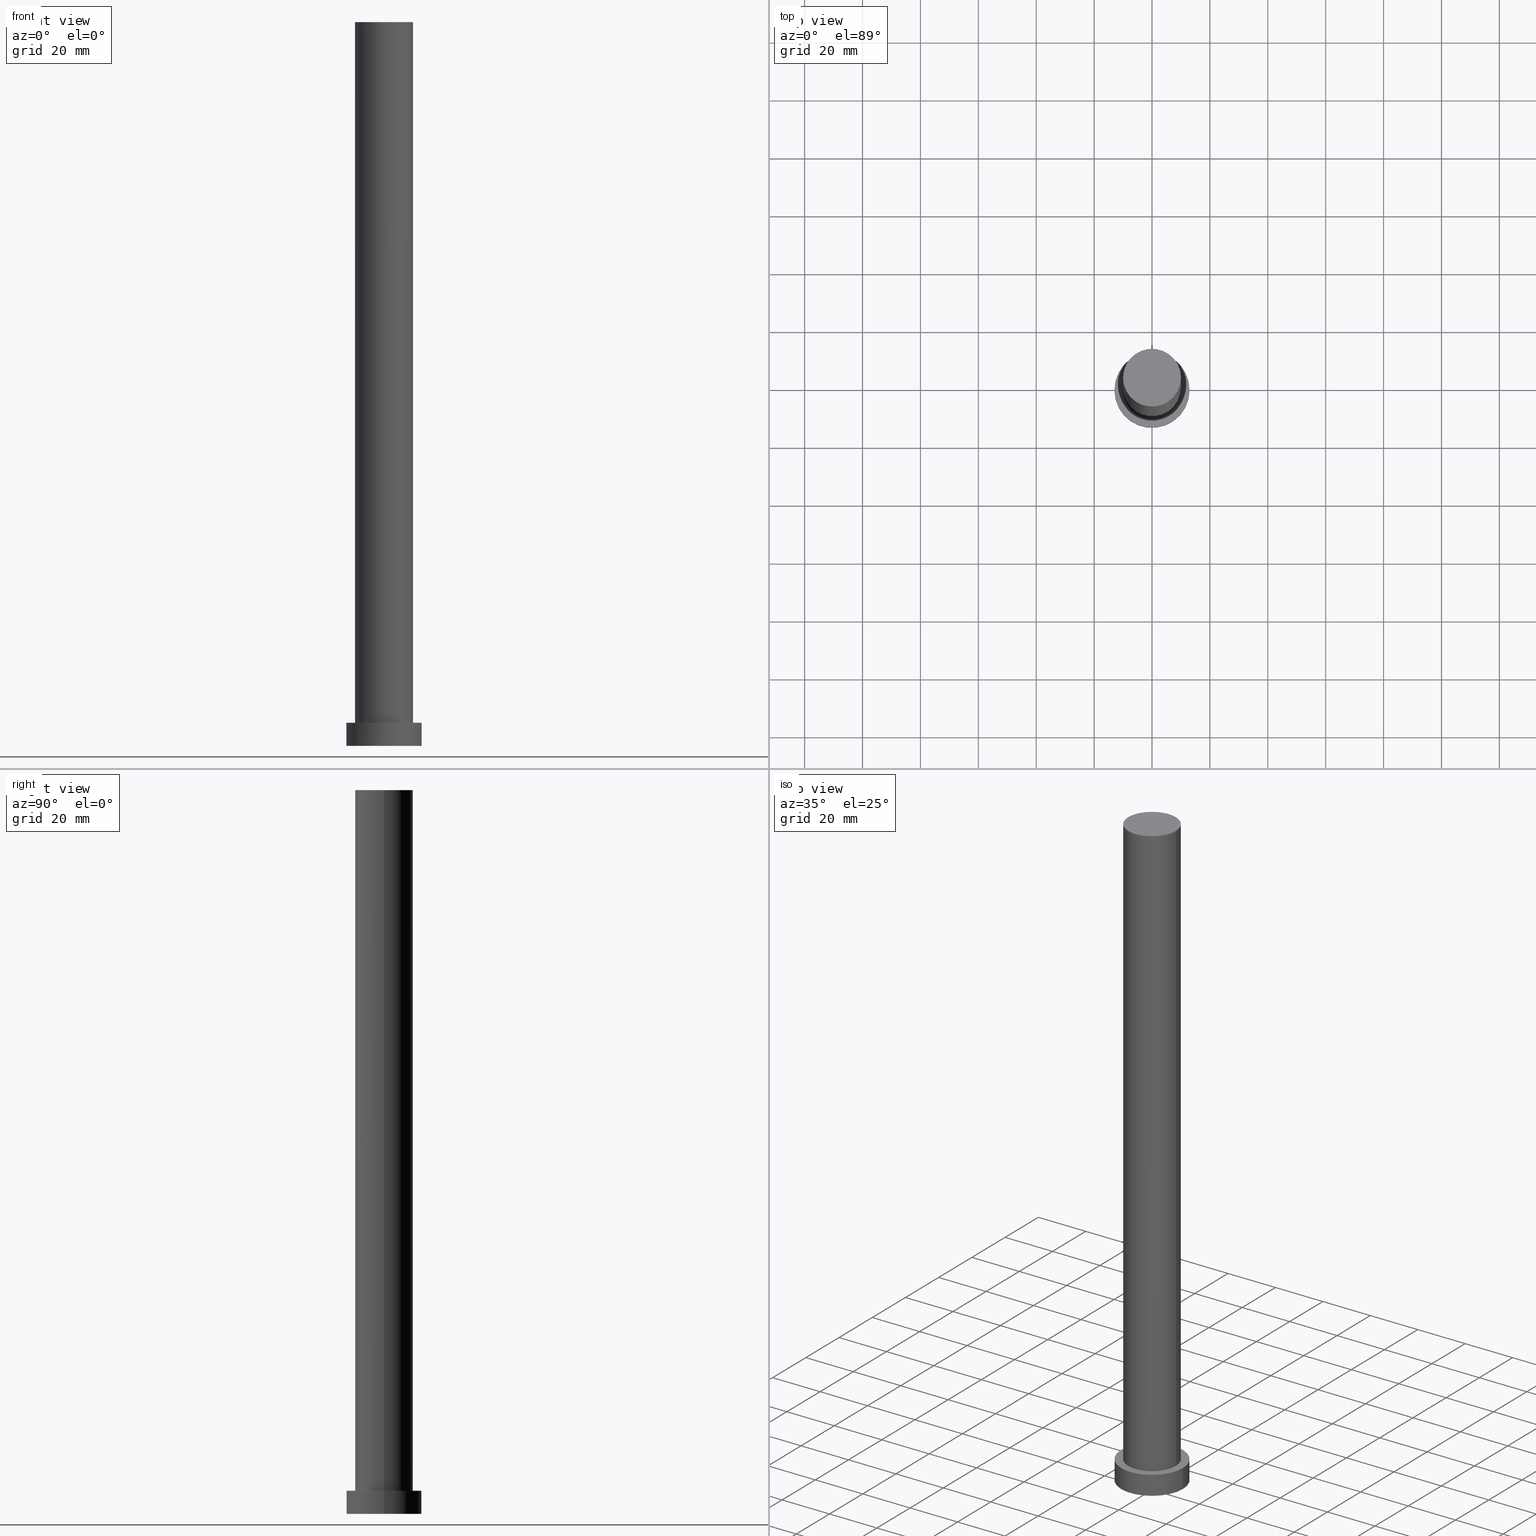
[diagram: canonical four-view strip — front | top / right | iso, engineering-drawing reading convention]
A machine part, canonical four-view strip (front | top / right | iso — engineering-drawing reading convention). The complete STEP part file that produces these views, byte-faithful:
ISO-10303-21;
HEADER;
FILE_DESCRIPTION (( 'STEP AP203' ),
    '1' );
FILE_NAME ('cdd8.STEP',
    '2023-02-12T10:36:06',
    ( '' ),
    ( '' ),
    'SwSTEP 2.0',
    'SolidWorks 2019',
    '' );
FILE_SCHEMA (( 'CONFIG_CONTROL_DESIGN' ));
ENDSEC;

DATA;
#1 = VERTEX_POINT ( 'NONE', #127 ) ;
#2 = PERSON_AND_ORGANIZATION ( #43, #31 ) ;
#3 = ORIENTED_EDGE ( 'NONE', *, *, #60, .T. ) ;
#4 = AXIS2_PLACEMENT_3D ( 'NONE', #192, #133, #86 ) ;
#5 = VERTEX_POINT ( 'NONE', #148 ) ;
#6 = DIRECTION ( 'NONE',  ( 1.000000000000000000, 0.000000000000000000, 0.000000000000000000 ) ) ;
#7 = DIRECTION ( 'NONE',  ( -0.000000000000000000, -0.000000000000000000, -1.000000000000000000 ) ) ;
#8 = CARTESIAN_POINT ( 'NONE',  ( 0.000000000000000000, 0.000000000000000000, 0.000000000000000000 ) ) ;
#9 = DIRECTION ( 'NONE',  ( 1.000000000000000000, 0.000000000000000000, 0.000000000000000000 ) ) ;
#10 = EDGE_CURVE ( 'NONE', #142, #102, #42, .T. ) ;
#11 = FACE_OUTER_BOUND ( 'NONE', #147, .T. ) ;
#12 = CARTESIAN_POINT ( 'NONE',  ( 0.000000000000000000, 0.000000000000000000, 8.000000000000000000 ) ) ;
#13 = CALENDAR_DATE ( 2023, 12, 2 ) ;
#14 = APPROVAL_ROLE ( '' ) ;
#15 = PLANE ( 'NONE',  #114 ) ;
#16 = PERSON_AND_ORGANIZATION ( #43, #31 ) ;
#17 = ADVANCED_FACE ( 'NONE', ( #185 ), #188, .T. ) ;
#18 = EDGE_LOOP ( 'NONE', ( #181, #76, #195, #100 ) ) ;
#19 = APPROVAL_DATE_TIME ( #175, #151 ) ;
#20 = ADVANCED_FACE ( 'NONE', ( #64 ), #222, .F. ) ;
#21 = ORIENTED_EDGE ( 'NONE', *, *, #173, .T. ) ;
#22 = CARTESIAN_POINT ( 'NONE',  ( 10.00000000000000178, 1.224646799147353454E-15, 250.0000000000000000 ) ) ;
#23 = FACE_OUTER_BOUND ( 'NONE', #57, .T. ) ;
#24 = DIRECTION ( 'NONE',  ( -1.000000000000000000, 0.000000000000000000, 0.000000000000000000 ) ) ;
#25 = VECTOR ( 'NONE', #206, 1000.000000000000000 ) ;
#26 = DIRECTION ( 'NONE',  ( 1.000000000000000000, 0.000000000000000000, -0.000000000000000000 ) ) ;
#27 = DIRECTION ( 'NONE',  ( -0.000000000000000000, -0.000000000000000000, -1.000000000000000000 ) ) ;
#28 = LINE ( 'NONE', #120, #25 ) ;
#29 =( GEOMETRIC_REPRESENTATION_CONTEXT ( 3 ) GLOBAL_UNCERTAINTY_ASSIGNED_CONTEXT ( ( #227 ) ) GLOBAL_UNIT_ASSIGNED_CONTEXT ( ( #228, #52, #158 ) ) REPRESENTATION_CONTEXT ( 'NONE', 'WORKASPACE' ) );
#30 = CC_DESIGN_APPROVAL ( #151, ( #150 ) ) ;
#31 = ORGANIZATION ( 'NEUR�EN�', 'NEUR�EN�', '' ) ;
#32 = PERSON_AND_ORGANIZATION_ROLE ( 'classification_officer' ) ;
#33 = EDGE_LOOP ( 'NONE', ( #144, #166, #124, #163 ) ) ;
#34 = VERTEX_POINT ( 'NONE', #169 ) ;
#35 = PERSON_AND_ORGANIZATION ( #43, #31 ) ;
#36 = AXIS2_PLACEMENT_3D ( 'NONE', #223, #84, #110 ) ;
#37 = EDGE_LOOP ( 'NONE', ( #194, #160, #21, #179 ) ) ;
#38 = EDGE_CURVE ( 'NONE', #1, #5, #126, .T. ) ;
#39 = ORIENTED_EDGE ( 'NONE', *, *, #238, .F. ) ;
#40 = LINE ( 'NONE', #202, #251 ) ;
#41 = EDGE_CURVE ( 'NONE', #102, #142, #209, .T. ) ;
#42 = CIRCLE ( 'NONE', #190, 10.00000000000000178 ) ;
#43 = PERSON ( 'NEUR�EN�', 'NEUR�EN�', 'NEUR�EN�', ('NEUR�EN�'), ('NEUR�EN�'), ('NEUR�EN�') ) ;
#44 = VECTOR ( 'NONE', #62, 1000.000000000000000 ) ;
#45 = DIRECTION ( 'NONE',  ( 0.000000000000000000, 0.000000000000000000, 1.000000000000000000 ) ) ;
#46 = CYLINDRICAL_SURFACE ( 'NONE', #203, 13.00000000000000178 ) ;
#47 = DIRECTION ( 'NONE',  ( 0.000000000000000000, 0.000000000000000000, 1.000000000000000000 ) ) ;
#48 = DIRECTION ( 'NONE',  ( -0.000000000000000000, -0.000000000000000000, -1.000000000000000000 ) ) ;
#49 = SECURITY_CLASSIFICATION ( '', '', #232 ) ;
#50 = PERSON_AND_ORGANIZATION ( #43, #31 ) ;
#51 = DIRECTION ( 'NONE',  ( -1.000000000000000000, 0.000000000000000000, 0.000000000000000000 ) ) ;
#52 =( NAMED_UNIT ( * ) PLANE_ANGLE_UNIT ( ) SI_UNIT ( $, .RADIAN. ) );
#53 = LOCAL_TIME ( 11, 36, 6.000000000000000000, #69 ) ;
#54 = APPROVAL_DATE_TIME ( #177, #55 ) ;
#55 = APPROVAL ( #244, 'NEUR�EN�' ) ;
#56 = AXIS2_PLACEMENT_3D ( 'NONE', #200, #171, #245 ) ;
#57 = EDGE_LOOP ( 'NONE', ( #234, #79, #218, #123 ) ) ;
#58 = MANIFOLD_SOLID_BREP ( 'P�idat vysunut�m3', #83 ) ;
#59 = ORIENTED_EDGE ( 'NONE', *, *, #10, .T. ) ;
#60 = EDGE_CURVE ( 'NONE', #5, #1, #72, .T. ) ;
#61 = DIRECTION ( 'NONE',  ( 1.000000000000000000, 0.000000000000000000, -0.000000000000000000 ) ) ;
#62 = DIRECTION ( 'NONE',  ( -0.000000000000000000, -0.000000000000000000, -1.000000000000000000 ) ) ;
#63 = DIRECTION ( 'NONE',  ( -0.000000000000000000, -0.000000000000000000, -1.000000000000000000 ) ) ;
#64 = FACE_OUTER_BOUND ( 'NONE', #165, .T. ) ;
#65 = APPROVAL ( #145, 'NEUR�EN�' ) ;
#66 = APPLICATION_CONTEXT ( 'configuration controlled 3d designs of mechanical parts and assemblies' ) ;
#67 = LINE ( 'NONE', #241, #237 ) ;
#68 = AXIS2_PLACEMENT_3D ( 'NONE', #220, #184, #132 ) ;
#69 = COORDINATED_UNIVERSAL_TIME_OFFSET ( 1, 0, .AHEAD. ) ;
#70 = EDGE_CURVE ( 'NONE', #239, #134, #215, .T. ) ;
#71 = DIRECTION ( 'NONE',  ( 1.000000000000000000, 0.000000000000000000, 0.000000000000000000 ) ) ;
#72 = CIRCLE ( 'NONE', #68, 13.00000000000000178 ) ;
#73 = DIRECTION ( 'NONE',  ( 0.000000000000000000, 0.000000000000000000, 1.000000000000000000 ) ) ;
#74 = COORDINATED_UNIVERSAL_TIME_OFFSET ( 1, 0, .AHEAD. ) ;
#75 = AXIS2_PLACEMENT_3D ( 'NONE', #8, #224, #26 ) ;
#76 = ORIENTED_EDGE ( 'NONE', *, *, #130, .T. ) ;
#77 = APPROVAL_ROLE ( '' ) ;
#78 = CC_DESIGN_DATE_AND_TIME_ASSIGNMENT ( #205, #140, ( #98 ) ) ;
#79 = ORIENTED_EDGE ( 'NONE', *, *, #60, .F. ) ;
#80 = ORIENTED_EDGE ( 'NONE', *, *, #70, .F. ) ;
#81 = CARTESIAN_POINT ( 'NONE',  ( 0.000000000000000000, 0.000000000000000000, 8.000000000000000000 ) ) ;
#82 = DIRECTION ( 'NONE',  ( -1.000000000000000000, 0.000000000000000000, 0.000000000000000000 ) ) ;
#83 = CLOSED_SHELL ( 'NONE', ( #118, #17, #183, #135, #20, #196, #247 ) ) ;
#84 = DIRECTION ( 'NONE',  ( 0.000000000000000000, 0.000000000000000000, 1.000000000000000000 ) ) ;
#85 = FACE_OUTER_BOUND ( 'NONE', #18, .T. ) ;
#86 = DIRECTION ( 'NONE',  ( 1.000000000000000000, 0.000000000000000000, 0.000000000000000000 ) ) ;
#87 = PLANE ( 'NONE',  #89 ) ;
#88 = APPROVAL_STATUS ( 'not_yet_approved' ) ;
#89 = AXIS2_PLACEMENT_3D ( 'NONE', #240, #199, #61 ) ;
#90 = CARTESIAN_POINT ( 'NONE',  ( 0.000000000000000000, 0.000000000000000000, 250.0000000000000000 ) ) ;
#91 = CALENDAR_DATE ( 2023, 12, 2 ) ;
#92 = PERSON_AND_ORGANIZATION ( #43, #31 ) ;
#93 = DIRECTION ( 'NONE',  ( 0.000000000000000000, 0.000000000000000000, 1.000000000000000000 ) ) ;
#94 = AXIS2_PLACEMENT_3D ( 'NONE', #12, #93, #191 ) ;
#95 = CC_DESIGN_PERSON_AND_ORGANIZATION_ASSIGNMENT ( #2, #178, ( #150 ) ) ;
#96 = COORDINATED_UNIVERSAL_TIME_OFFSET ( 1, 0, .AHEAD. ) ;
#97 = EDGE_LOOP ( 'NONE', ( #122, #59 ) ) ;
#98 = PRODUCT_DEFINITION ( 'NEZN�M�', '', #150, #229 ) ;
#99 = DATE_AND_TIME ( #212, #161 ) ;
#100 = ORIENTED_EDGE ( 'NONE', *, *, #173, .F. ) ;
#101 = EDGE_CURVE ( 'NONE', #5, #239, #40, .T. ) ;
#102 = VERTEX_POINT ( 'NONE', #187 ) ;
#103 = LOCAL_TIME ( 11, 36, 6.000000000000000000, #156 ) ;
#104 = LINE ( 'NONE', #167, #44 ) ;
#105 = CARTESIAN_POINT ( 'NONE',  ( 0.000000000000000000, 0.000000000000000000, 8.000000000000000000 ) ) ;
#106 = FACE_BOUND ( 'NONE', #217, .T. ) ;
#107 = AXIS2_PLACEMENT_3D ( 'NONE', #170, #243, #154 ) ;
#108 = CIRCLE ( 'NONE', #221, 10.00000000000000178 ) ;
#109 = CC_DESIGN_SECURITY_CLASSIFICATION ( #49, ( #150 ) ) ;
#110 = DIRECTION ( 'NONE',  ( 1.000000000000000000, 0.000000000000000000, 0.000000000000000000 ) ) ;
#111 = CARTESIAN_POINT ( 'NONE',  ( 13.00000000000000178, 1.592040838891559293E-15, 0.000000000000000000 ) ) ;
#112 = PERSON_AND_ORGANIZATION_ROLE ( 'design_owner' ) ;
#113 = CC_DESIGN_PERSON_AND_ORGANIZATION_ASSIGNMENT ( #236, #233, ( #150 ) ) ;
#114 = AXIS2_PLACEMENT_3D ( 'NONE', #90, #73, #159 ) ;
#115 = FACE_OUTER_BOUND ( 'NONE', #97, .T. ) ;
#116 = APPROVAL_PERSON_ORGANIZATION ( #235, #65, #77 ) ;
#117 = DIRECTION ( 'NONE',  ( 0.000000000000000000, 0.000000000000000000, 1.000000000000000000 ) ) ;
#118 = ADVANCED_FACE ( 'NONE', ( #85 ), #201, .T. ) ;
#119 = APPLICATION_CONTEXT ( 'configuration controlled 3d designs of mechanical parts and assemblies' ) ;
#120 = CARTESIAN_POINT ( 'NONE',  ( 13.00000000000000178, 1.592040838891559293E-15, 8.000000000000000000 ) ) ;
#121 = DATE_AND_TIME ( #141, #248 ) ;
#122 = ORIENTED_EDGE ( 'NONE', *, *, #41, .T. ) ;
#123 = ORIENTED_EDGE ( 'NONE', *, *, #70, .T. ) ;
#124 = ORIENTED_EDGE ( 'NONE', *, *, #208, .T. ) ;
#125 = AXIS2_PLACEMENT_3D ( 'NONE', #81, #153, #9 ) ;
#126 = CIRCLE ( 'NONE', #125, 13.00000000000000178 ) ;
#127 = CARTESIAN_POINT ( 'NONE',  ( 13.00000000000000178, 1.592040838891559293E-15, 8.000000000000000000 ) ) ;
#128 = CIRCLE ( 'NONE', #94, 10.00000000000000178 ) ;
#129 = DIRECTION ( 'NONE',  ( 1.000000000000000000, 0.000000000000000000, 0.000000000000000000 ) ) ;
#130 = EDGE_CURVE ( 'NONE', #142, #213, #67, .T. ) ;
#131 = CARTESIAN_POINT ( 'NONE',  ( 0.000000000000000000, 0.000000000000000000, 250.0000000000000000 ) ) ;
#132 = DIRECTION ( 'NONE',  ( 1.000000000000000000, 0.000000000000000000, 0.000000000000000000 ) ) ;
#133 = DIRECTION ( 'NONE',  ( 0.000000000000000000, 0.000000000000000000, 1.000000000000000000 ) ) ;
#134 = VERTEX_POINT ( 'NONE', #111 ) ;
#135 = ADVANCED_FACE ( 'NONE', ( #106, #11 ), #87, .T. ) ;
#136 = PERSON_AND_ORGANIZATION_ROLE ( 'creator' ) ;
#137 = APPROVAL_ROLE ( '' ) ;
#138 = CARTESIAN_POINT ( 'NONE',  ( 0.000000000000000000, 0.000000000000000000, 0.000000000000000000 ) ) ;
#139 = PRODUCT_DEFINITION_SHAPE ( 'NONE', 'NONE',  #98 ) ;
#140 = DATE_TIME_ROLE ( 'creation_date' ) ;
#141 = CALENDAR_DATE ( 2023, 12, 2 ) ;
#142 = VERTEX_POINT ( 'NONE', #22 ) ;
#143 = DATE_TIME_ROLE ( 'classification_date' ) ;
#144 = ORIENTED_EDGE ( 'NONE', *, *, #38, .F. ) ;
#145 = APPROVAL_STATUS ( 'not_yet_approved' ) ;
#146 = AXIS2_PLACEMENT_3D ( 'NONE', #138, #117, #71 ) ;
#147 = EDGE_LOOP ( 'NONE', ( #3, #197 ) ) ;
#148 = CARTESIAN_POINT ( 'NONE',  ( -13.00000000000000178, 0.000000000000000000, 8.000000000000000000 ) ) ;
#149 = CARTESIAN_POINT ( 'NONE',  ( 0.000000000000000000, 0.000000000000000000, 8.000000000000000000 ) ) ;
#150 = PRODUCT_DEFINITION_FORMATION_WITH_SPECIFIED_SOURCE ( 'LIBOVOLN�', '', #226, .NOT_KNOWN. ) ;
#151 = APPROVAL ( #88, 'NEUR�EN�' ) ;
#152 = CYLINDRICAL_SURFACE ( 'NONE', #252, 10.00000000000000178 ) ;
#153 = DIRECTION ( 'NONE',  ( 0.000000000000000000, 0.000000000000000000, 1.000000000000000000 ) ) ;
#154 = DIRECTION ( 'NONE',  ( 1.000000000000000000, 0.000000000000000000, 0.000000000000000000 ) ) ;
#155 = APPLICATION_PROTOCOL_DEFINITION ( 'international standard', 'config_control_design', 1994, #66 ) ;
#156 = COORDINATED_UNIVERSAL_TIME_OFFSET ( 1, 0, .AHEAD. ) ;
#157 = CC_DESIGN_DATE_AND_TIME_ASSIGNMENT ( #121, #143, ( #49 ) ) ;
#158 =( NAMED_UNIT ( * ) SI_UNIT ( $, .STERADIAN. ) SOLID_ANGLE_UNIT ( ) );
#159 = DIRECTION ( 'NONE',  ( 1.000000000000000000, 0.000000000000000000, -0.000000000000000000 ) ) ;
#160 = ORIENTED_EDGE ( 'NONE', *, *, #41, .F. ) ;
#161 = LOCAL_TIME ( 11, 36, 6.000000000000000000, #74 ) ;
#162 = ORIENTED_EDGE ( 'NONE', *, *, #208, .F. ) ;
#163 = ORIENTED_EDGE ( 'NONE', *, *, #101, .F. ) ;
#164 = PRODUCT_RELATED_PRODUCT_CATEGORY ( 'detail', '', ( #226 ) ) ;
#165 = EDGE_LOOP ( 'NONE', ( #80, #162 ) ) ;
#166 = ORIENTED_EDGE ( 'NONE', *, *, #219, .T. ) ;
#167 = CARTESIAN_POINT ( 'NONE',  ( -10.00000000000000178, 0.000000000000000000, 250.0000000000000000 ) ) ;
#168 = CC_DESIGN_PERSON_AND_ORGANIZATION_ASSIGNMENT ( #92, #112, ( #226 ) ) ;
#169 = CARTESIAN_POINT ( 'NONE',  ( -10.00000000000000178, 0.000000000000000000, 8.000000000000000000 ) ) ;
#170 = CARTESIAN_POINT ( 'NONE',  ( 0.000000000000000000, 0.000000000000000000, 0.000000000000000000 ) ) ;
#171 = DIRECTION ( 'NONE',  ( -0.000000000000000000, -0.000000000000000000, -1.000000000000000000 ) ) ;
#172 = APPLICATION_PROTOCOL_DEFINITION ( 'international standard', 'config_control_design', 1994, #119 ) ;
#173 = EDGE_CURVE ( 'NONE', #102, #34, #104, .T. ) ;
#174 = CARTESIAN_POINT ( 'NONE',  ( -13.00000000000000178, 0.000000000000000000, 0.000000000000000000 ) ) ;
#175 = DATE_AND_TIME ( #13, #216 ) ;
#176 = CC_DESIGN_PERSON_AND_ORGANIZATION_ASSIGNMENT ( #35, #32, ( #49 ) ) ;
#177 = DATE_AND_TIME ( #91, #53 ) ;
#178 = PERSON_AND_ORGANIZATION_ROLE ( 'design_supplier' ) ;
#179 = ORIENTED_EDGE ( 'NONE', *, *, #180, .T. ) ;
#180 = EDGE_CURVE ( 'NONE', #34, #213, #108, .T. ) ;
#181 = ORIENTED_EDGE ( 'NONE', *, *, #10, .F. ) ;
#182 = APPROVAL_PERSON_ORGANIZATION ( #16, #55, #14 ) ;
#183 = ADVANCED_FACE ( 'NONE', ( #23 ), #46, .T. ) ;
#184 = DIRECTION ( 'NONE',  ( 0.000000000000000000, 0.000000000000000000, 1.000000000000000000 ) ) ;
#185 = FACE_OUTER_BOUND ( 'NONE', #33, .T. ) ;
#186 = CARTESIAN_POINT ( 'NONE',  ( 0.000000000000000000, 0.000000000000000000, 8.000000000000000000 ) ) ;
#187 = CARTESIAN_POINT ( 'NONE',  ( -10.00000000000000178, 0.000000000000000000, 250.0000000000000000 ) ) ;
#188 = CYLINDRICAL_SURFACE ( 'NONE', #230, 13.00000000000000178 ) ;
#189 = COORDINATED_UNIVERSAL_TIME_OFFSET ( 1, 0, .AHEAD. ) ;
#190 = AXIS2_PLACEMENT_3D ( 'NONE', #204, #47, #6 ) ;
#191 = DIRECTION ( 'NONE',  ( 1.000000000000000000, 0.000000000000000000, 0.000000000000000000 ) ) ;
#192 = CARTESIAN_POINT ( 'NONE',  ( 0.000000000000000000, 0.000000000000000000, 0.000000000000000000 ) ) ;
#193 = CIRCLE ( 'NONE', #146, 13.00000000000000178 ) ;
#194 = ORIENTED_EDGE ( 'NONE', *, *, #130, .F. ) ;
#195 = ORIENTED_EDGE ( 'NONE', *, *, #238, .T. ) ;
#196 = ADVANCED_FACE ( 'NONE', ( #242 ), #152, .T. ) ;
#197 = ORIENTED_EDGE ( 'NONE', *, *, #38, .T. ) ;
#198 = ORIENTED_EDGE ( 'NONE', *, *, #180, .F. ) ;
#199 = DIRECTION ( 'NONE',  ( 0.000000000000000000, 0.000000000000000000, 1.000000000000000000 ) ) ;
#200 = CARTESIAN_POINT ( 'NONE',  ( 0.000000000000000000, 0.000000000000000000, 250.0000000000000000 ) ) ;
#201 = CYLINDRICAL_SURFACE ( 'NONE', #56, 10.00000000000000178 ) ;
#202 = CARTESIAN_POINT ( 'NONE',  ( -13.00000000000000178, 0.000000000000000000, 8.000000000000000000 ) ) ;
#203 = AXIS2_PLACEMENT_3D ( 'NONE', #105, #7, #82 ) ;
#204 = CARTESIAN_POINT ( 'NONE',  ( 0.000000000000000000, 0.000000000000000000, 250.0000000000000000 ) ) ;
#205 = DATE_AND_TIME ( #249, #103 ) ;
#206 = DIRECTION ( 'NONE',  ( -0.000000000000000000, -0.000000000000000000, -1.000000000000000000 ) ) ;
#207 = ADVANCED_BREP_SHAPE_REPRESENTATION ( 'cdd8', ( #58, #4 ), #29 ) ;
#208 = EDGE_CURVE ( 'NONE', #134, #239, #193, .T. ) ;
#209 = CIRCLE ( 'NONE', #36, 10.00000000000000178 ) ;
#210 = DIRECTION ( 'NONE',  ( -0.000000000000000000, -0.000000000000000000, -1.000000000000000000 ) ) ;
#211 = PERSON_AND_ORGANIZATION ( #43, #31 ) ;
#212 = CALENDAR_DATE ( 2023, 12, 2 ) ;
#213 = VERTEX_POINT ( 'NONE', #250 ) ;
#214 = APPROVAL_DATE_TIME ( #99, #65 ) ;
#215 = CIRCLE ( 'NONE', #107, 13.00000000000000178 ) ;
#216 = LOCAL_TIME ( 11, 36, 6.000000000000000000, #189 ) ;
#217 = EDGE_LOOP ( 'NONE', ( #198, #39 ) ) ;
#218 = ORIENTED_EDGE ( 'NONE', *, *, #101, .T. ) ;
#219 = EDGE_CURVE ( 'NONE', #1, #134, #28, .T. ) ;
#220 = CARTESIAN_POINT ( 'NONE',  ( 0.000000000000000000, 0.000000000000000000, 8.000000000000000000 ) ) ;
#221 = AXIS2_PLACEMENT_3D ( 'NONE', #149, #45, #129 ) ;
#222 = PLANE ( 'NONE',  #75 ) ;
#223 = CARTESIAN_POINT ( 'NONE',  ( 0.000000000000000000, 0.000000000000000000, 250.0000000000000000 ) ) ;
#224 = DIRECTION ( 'NONE',  ( 0.000000000000000000, 0.000000000000000000, 1.000000000000000000 ) ) ;
#225 = CC_DESIGN_APPROVAL ( #55, ( #98 ) ) ;
#226 = PRODUCT ( 'cdd8', 'cdd8', '', ( #246 ) ) ;
#227 = UNCERTAINTY_MEASURE_WITH_UNIT (LENGTH_MEASURE( 1.000000000000000082E-05 ), #228, 'distance_accuracy_value', 'NONE');
#228 =( LENGTH_UNIT ( ) NAMED_UNIT ( * ) SI_UNIT ( .MILLI., .METRE. ) );
#229 = DESIGN_CONTEXT ( 'detailed design', #66, 'design' ) ;
#230 = AXIS2_PLACEMENT_3D ( 'NONE', #186, #27, #24 ) ;
#231 = APPROVAL_PERSON_ORGANIZATION ( #211, #151, #137 ) ;
#232 = SECURITY_CLASSIFICATION_LEVEL ( 'unclassified' ) ;
#233 = PERSON_AND_ORGANIZATION_ROLE ( 'creator' ) ;
#234 = ORIENTED_EDGE ( 'NONE', *, *, #219, .F. ) ;
#235 = PERSON_AND_ORGANIZATION ( #43, #31 ) ;
#236 = PERSON_AND_ORGANIZATION ( #43, #31 ) ;
#237 = VECTOR ( 'NONE', #63, 1000.000000000000000 ) ;
#238 = EDGE_CURVE ( 'NONE', #213, #34, #128, .T. ) ;
#239 = VERTEX_POINT ( 'NONE', #174 ) ;
#240 = CARTESIAN_POINT ( 'NONE',  ( 0.000000000000000000, 0.000000000000000000, 8.000000000000000000 ) ) ;
#241 = CARTESIAN_POINT ( 'NONE',  ( 10.00000000000000178, 1.224646799147353454E-15, 250.0000000000000000 ) ) ;
#242 = FACE_OUTER_BOUND ( 'NONE', #37, .T. ) ;
#243 = DIRECTION ( 'NONE',  ( 0.000000000000000000, 0.000000000000000000, 1.000000000000000000 ) ) ;
#244 = APPROVAL_STATUS ( 'not_yet_approved' ) ;
#245 = DIRECTION ( 'NONE',  ( -1.000000000000000000, 0.000000000000000000, 0.000000000000000000 ) ) ;
#246 = MECHANICAL_CONTEXT ( 'NONE', #119, 'mechanical' ) ;
#247 = ADVANCED_FACE ( 'NONE', ( #115 ), #15, .T. ) ;
#248 = LOCAL_TIME ( 11, 36, 6.000000000000000000, #96 ) ;
#249 = CALENDAR_DATE ( 2023, 12, 2 ) ;
#250 = CARTESIAN_POINT ( 'NONE',  ( 10.00000000000000178, 1.224646799147353454E-15, 8.000000000000000000 ) ) ;
#251 = VECTOR ( 'NONE', #48, 1000.000000000000000 ) ;
#252 = AXIS2_PLACEMENT_3D ( 'NONE', #131, #210, #51 ) ;
#253 = CC_DESIGN_APPROVAL ( #65, ( #49 ) ) ;
#254 = CC_DESIGN_PERSON_AND_ORGANIZATION_ASSIGNMENT ( #50, #136, ( #98 ) ) ;
#255 = SHAPE_DEFINITION_REPRESENTATION ( #139, #207 ) ;
ENDSEC;
END-ISO-10303-21;
